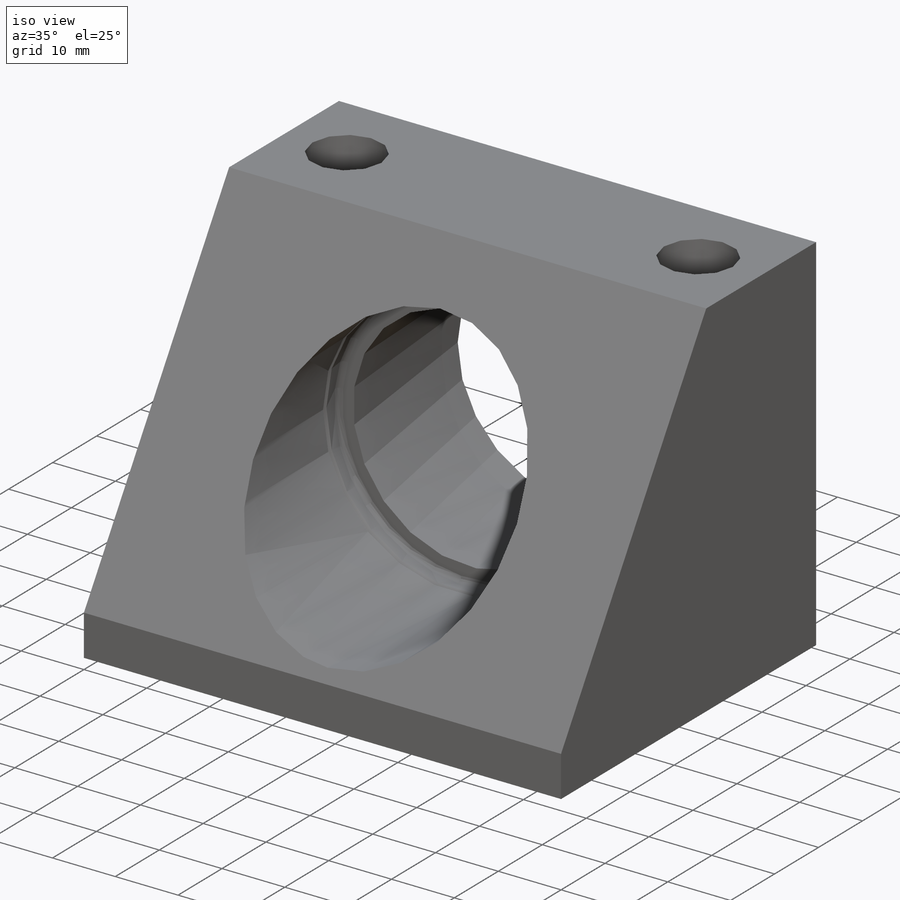
[diagram: iso view]
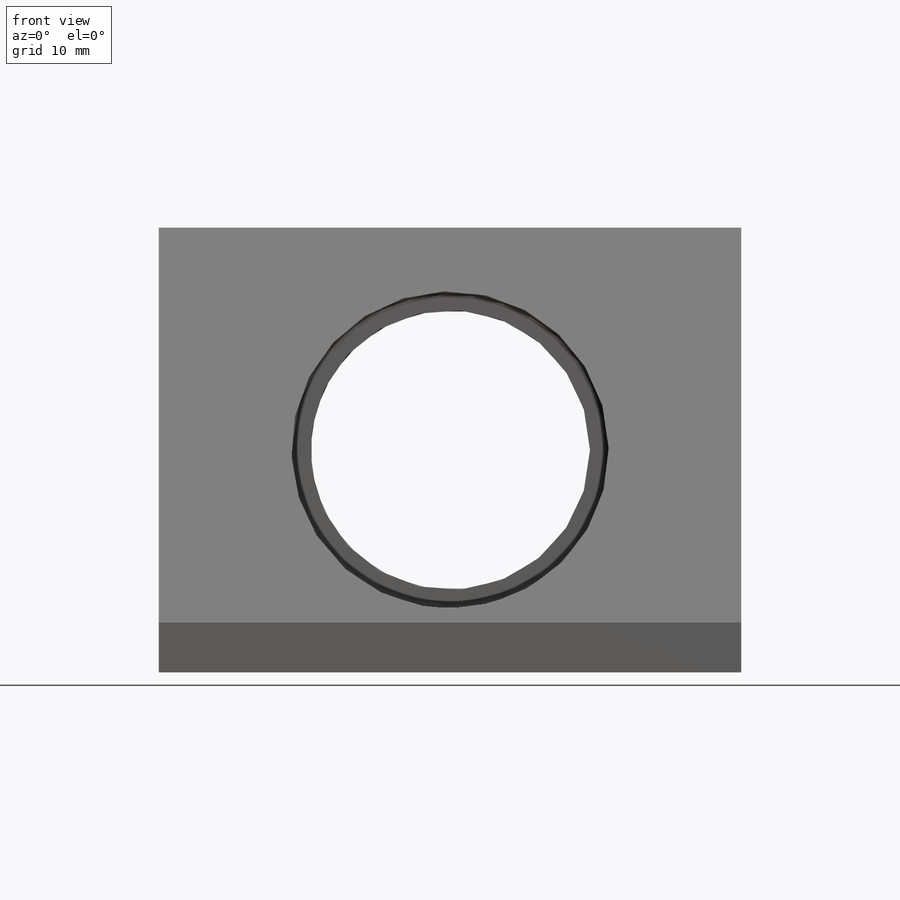
[diagram: front view]
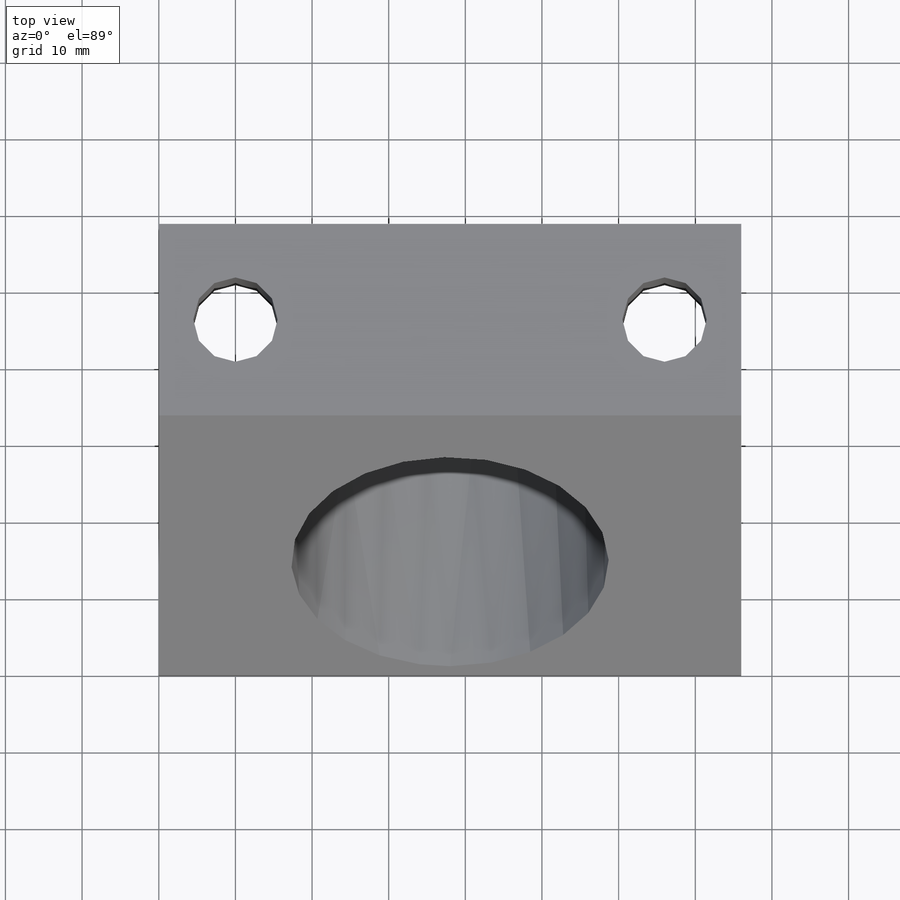
[diagram: top view]
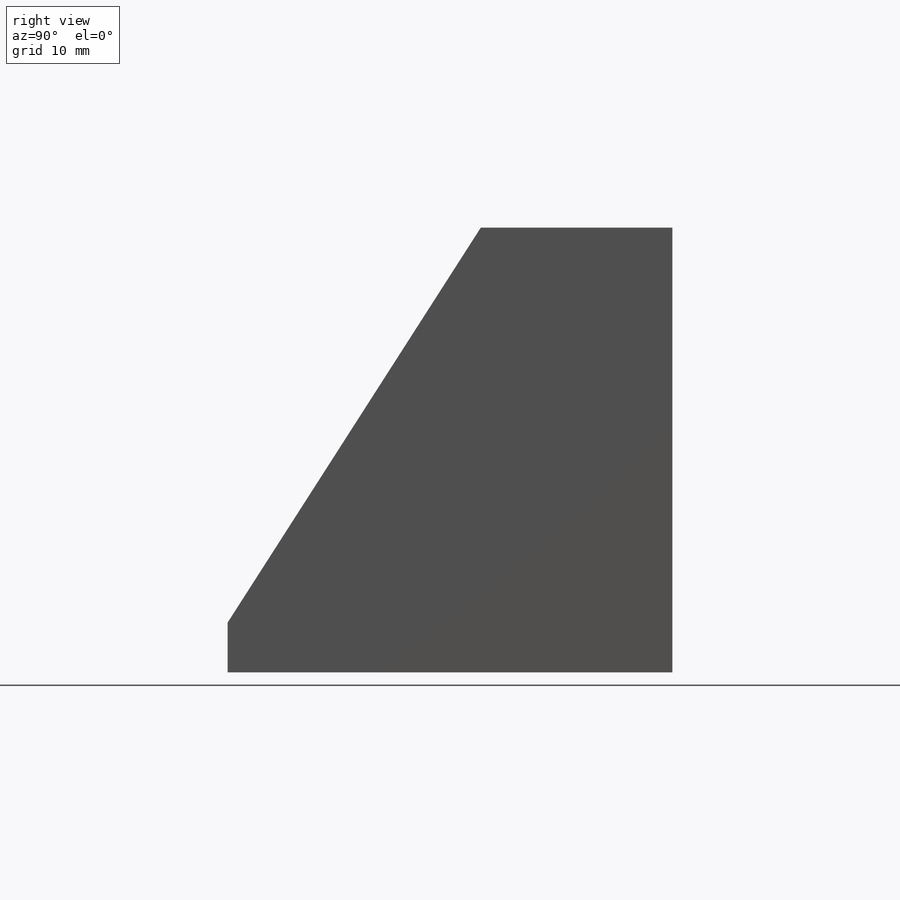
[diagram: right view]
SOLIDWORKS PART (.sldprt)
format: sldprt  version: not decoded by parser v0  size: 238,080 bytes
history: native  units: mm
features: sketch x6, cut_extrude x2, material x1, extrude x1, fillet x1, hole x1, plane x1, cut_revolve x1 (+13 scaffold rows collapsed)
feature tree (27):
  scaffold x13  (default folders/planes/origin — collapsed)
  material  "Alloy Steel"
  sketch  "Sketch1"  dims[D4=36.525mm D1=75.9968mm D2=58.0136mm D3=29.0068mm]
  extrude  "Extrude1"  Depth=58.0136mm
  sketch  "Sketch2"  dims[c1.D2=19.05mm c1.D3=6.35mm c1.D1=24.9936mm c2.D2=6.5024mm c2.D1=0.0mm]
  cut_extrude  "Cut-Extrude1"  [1 undecoded]
  sketch  "Sketch3"  dims[D1=41.402mm]
  cut_extrude  "Cut-Extrude2"  Depth=24.9936mm
  fillet  "Fillet1"  Radius=0.762mm
  hole  "Hole1"  Diameter=10.9982mm Depth=58.0136mm
  sketch  "Sketch5"  dims[c1.D1=10.0076mm c1.D2=12.7mm c1.D3=55.9816mm c2.D2=12.4968mm]
  sketch  "Sketch4"  dims[Diameter=10.9982mm Depth=58.0136mm]
  plane  "Plane1"
  sketch  "Sketch6"  dims[c1.D1=~2.541005mm c2.D1=90.0deg c2.D2=~2.925687mm c3.D2=45.0deg c3.D3=0.762mm c3.D4=27.94mm c3.D5=~5.03612mm c4.D5=45.0deg c4.D6=38.862mm]
  cut_revolve  "Cut-Revolve1"  Angle=360deg
decode coverage: 11 of 12 modeling features carry decoded parameters
note: ~ marks probable driven/reference dimensions
note: 1 parameter value undecoded
note: suppression state not decoded; provenance and decode notes live in map.json
